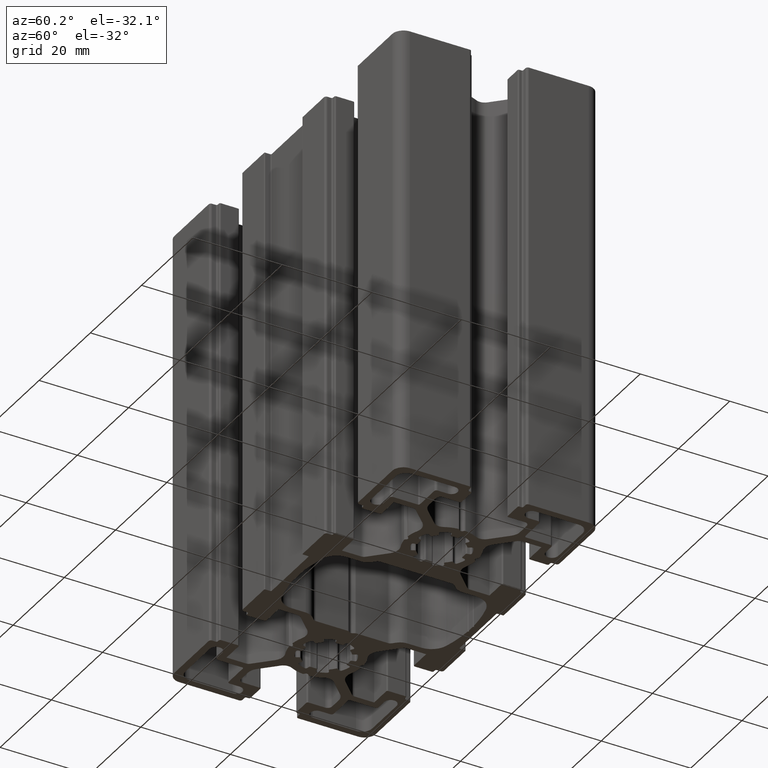
[diagram: clean part render]
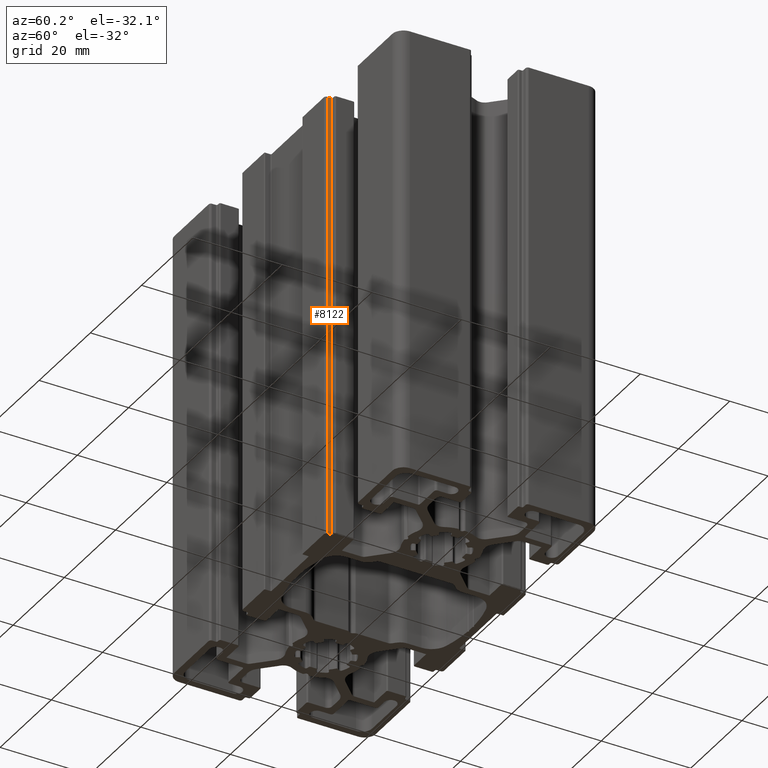
[diagram: same view with one face highlighted and labeled with its STEP entity id]
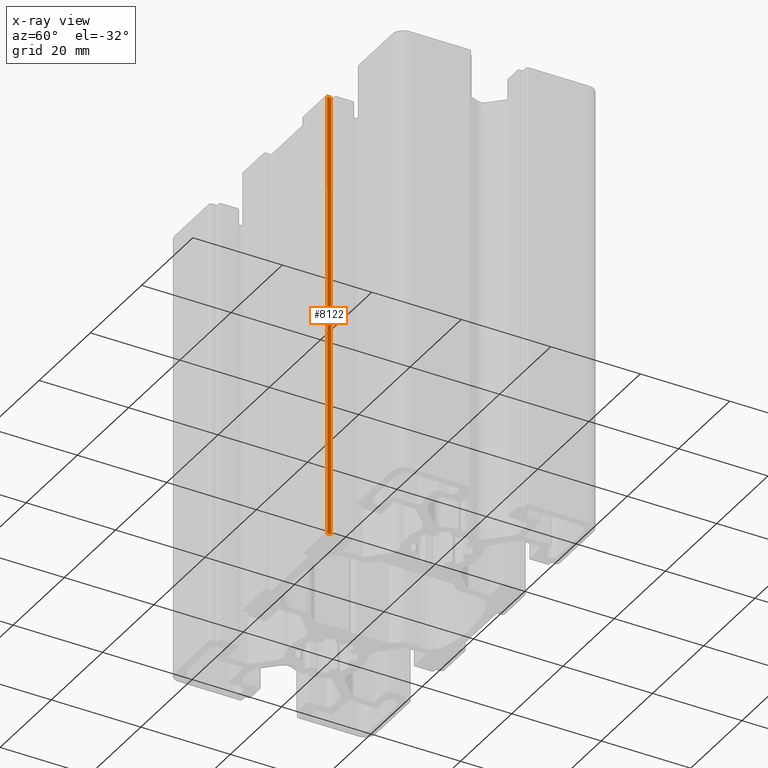
[diagram: x-ray of the same camera — body ghosted, the highlighted face saturated]
A machine part, auxiliary view. The second image highlights one B-rep face of the part: STEP entity #8122.
The next image is the same camera in x-ray: the body ghosted, the highlighted face saturated — about 0% of this face is hidden behind the body in this view.
In plain terms, the highlighted planar face has unit normal (-1, 0, 0).
Its self-contained STEP definition (entity closure, byte-faithful):
#987=FACE_OUTER_BOUND('',#1409,.T.);
#1409=EDGE_LOOP('',(#5998,#5999,#6000,#6001));
#1990=LINE('',#13042,#2736);
#1991=LINE('',#13046,#2737);
#1992=LINE('',#13048,#2738);
#1993=LINE('',#13049,#2739);
#2736=VECTOR('',#10461,100.);
#2737=VECTOR('',#10466,0.799999999999952);
#2738=VECTOR('',#10467,100.);
#2739=VECTOR('',#10468,0.799999999999952);
#3526=VERTEX_POINT('',#13039);
#3527=VERTEX_POINT('',#13041);
#3528=VERTEX_POINT('',#13045);
#3529=VERTEX_POINT('',#13047);
#4551=EDGE_CURVE('',#3527,#3526,#1990,.T.);
#4553=EDGE_CURVE('',#3528,#3526,#1991,.T.);
#4554=EDGE_CURVE('',#3529,#3528,#1992,.T.);
#4555=EDGE_CURVE('',#3527,#3529,#1993,.T.);
#5998=ORIENTED_EDGE('',*,*,#4553,.F.);
#5999=ORIENTED_EDGE('',*,*,#4554,.F.);
#6000=ORIENTED_EDGE('',*,*,#4555,.F.);
#6001=ORIENTED_EDGE('',*,*,#4551,.T.);
#7842=PLANE('',#8776);
#8122=ADVANCED_FACE('',(#987),#7842,.F.);
#8776=AXIS2_PLACEMENT_3D('',#13044,#10464,#10465);
#10461=DIRECTION('',(0.,0.,1.));
#10464=DIRECTION('center_axis',(-1.,0.,0.));
#10465=DIRECTION('ref_axis',(0.,-1.,0.));
#10466=DIRECTION('',(0.,1.,0.));
#10467=DIRECTION('',(0.,0.,1.));
#10468=DIRECTION('',(0.,-1.,0.));
#13039=CARTESIAN_POINT('',(16.3499998866379,-21.2000000000001,100.));
#13041=CARTESIAN_POINT('',(16.3499998866379,-21.2000000000001,0.));
#13042=CARTESIAN_POINT('',(16.3499998866379,-21.2000000000001,0.));
#13044=CARTESIAN_POINT('Origin',(16.3499998866379,-21.2000000000001,0.));
#13045=CARTESIAN_POINT('',(16.3499998866379,-22.0000000000001,100.));
#13046=CARTESIAN_POINT('',(16.3499998866379,-10.6000000000001,100.));
#13047=CARTESIAN_POINT('',(16.3499998866379,-22.0000000000001,0.));
#13048=CARTESIAN_POINT('',(16.3499998866379,-22.0000000000001,0.));
#13049=CARTESIAN_POINT('',(16.3499998866379,-10.6000000000001,0.));